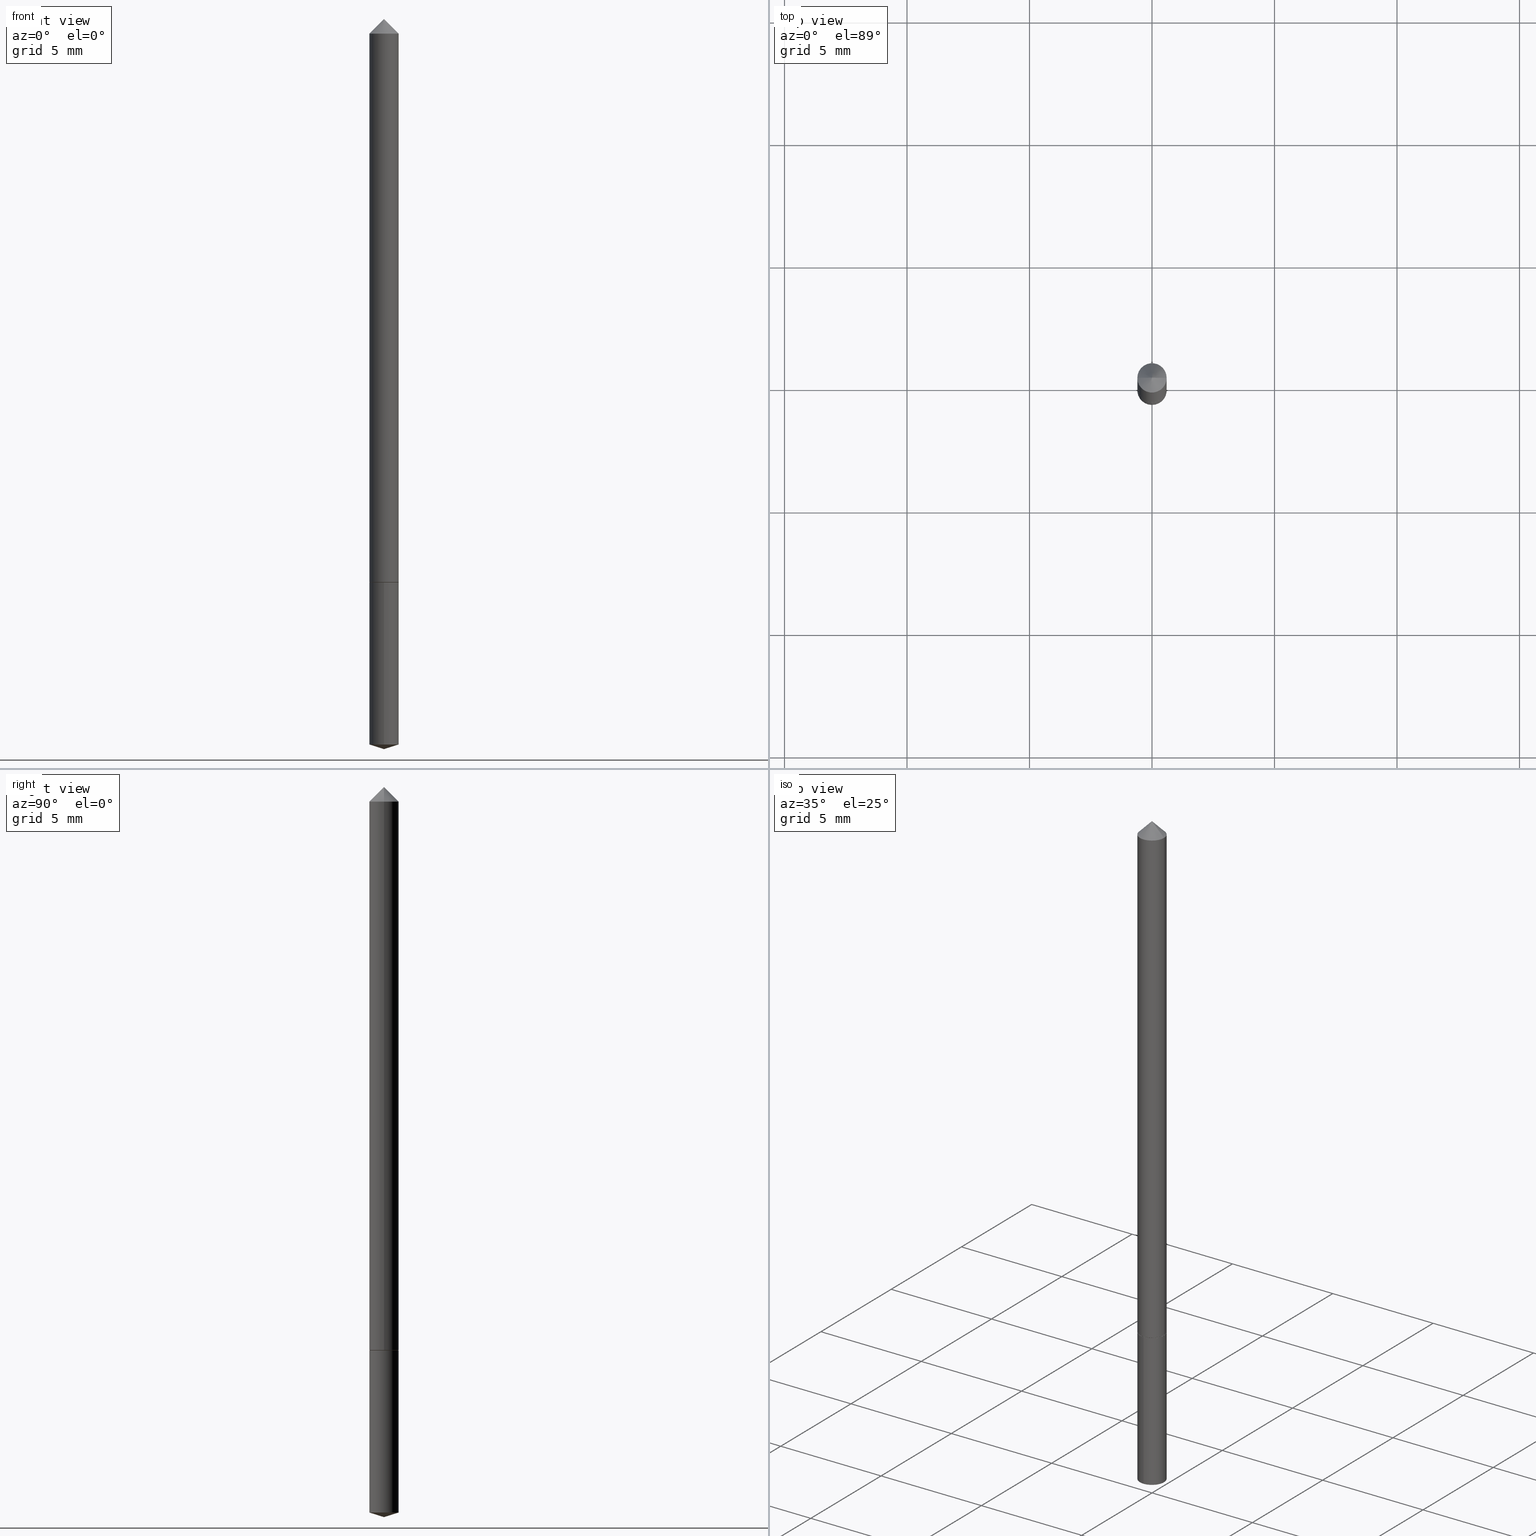
[diagram: canonical four-view strip — front | top / right | iso, engineering-drawing reading convention]
A machine part, canonical four-view strip (front | top / right | iso — engineering-drawing reading convention). The complete STEP part file that produces these views, byte-faithful:
ISO-10303-21;
HEADER;
FILE_DESCRIPTION (( 'STEP AP203' ),
    '1' );
FILE_NAME ('62029.STEP',
    '2024-04-23T04:55:15',
    ( '' ),
    ( '' ),
    'SwSTEP 2.0',
    'SolidWorks 2023',
    '' );
FILE_SCHEMA (( 'CONFIG_CONTROL_DESIGN' ));
ENDSEC;

DATA;
#1 = CC_DESIGN_DATE_AND_TIME_ASSIGNMENT ( #359, #280, ( #325 ) ) ;
#2 = MECHANICAL_CONTEXT ( 'NONE', #6, 'mechanical' ) ;
#3 = PLANE ( 'NONE',  #223 ) ;
#4 =( GEOMETRIC_REPRESENTATION_CONTEXT ( 3 ) GLOBAL_UNCERTAINTY_ASSIGNED_CONTEXT ( ( #201 ) ) GLOBAL_UNIT_ASSIGNED_CONTEXT ( ( #319, #290, #144 ) ) REPRESENTATION_CONTEXT ( 'NONE', 'WORKASPACE' ) );
#5 = LINE ( 'NONE', #231, #283 ) ;
#6 = APPLICATION_CONTEXT ( 'configuration controlled 3d designs of mechanical parts and assemblies' ) ;
#7 = CARTESIAN_POINT ( 'NONE',  ( 0.02360000000000010700, -3.351822085289419381E-15, -0.9127999999999999448 ) ) ;
#8 = DESIGN_CONTEXT ( 'detailed design', #62, 'design' ) ;
#9 = LOCAL_TIME ( 0, 55, 15.00000000000000000, #79 ) ;
#10 = DIRECTION ( 'NONE',  ( -6.982962677686265922E-15, -1.000000000000000000, 3.500519750498633829E-15 ) ) ;
#11 = DIRECTION ( 'NONE',  ( -6.982962677686265133E-15, -1.000000000000000000, 5.787813545898861862E-15 ) ) ;
#12 = ADVANCED_FACE ( 'NONE', ( #29 ), #336, .T. ) ;
#13 = CARTESIAN_POINT ( 'NONE',  ( 2.233446660688885291E-29, -3.188769906765445031E-15, -0.9133000000000001117 ) ) ;
#14 = DIRECTION ( 'NONE',  ( 1.000000000000000000, -6.982962677686265133E-15, 4.876176775795935793E-29 ) ) ;
#15 = ORIENTED_EDGE ( 'NONE', *, *, #232, .T. ) ;
#16 = DIRECTION ( 'NONE',  ( -2.445630756133418783E-29, 3.491249417299586917E-15, 1.000000000000000000 ) ) ;
#17 = EDGE_CURVE ( 'NONE', #294, #273, #33, .T. ) ;
#18 = ORIENTED_EDGE ( 'NONE', *, *, #194, .T. ) ;
#19 = CONICAL_SURFACE ( 'NONE', #203, 0.02360000000000000639, 0.7853981633974450594 ) ;
#20 = FACE_OUTER_BOUND ( 'NONE', #122, .T. ) ;
#21 = ORIENTED_EDGE ( 'NONE', *, *, #164, .F. ) ;
#22 = EDGE_LOOP ( 'NONE', ( #268, #73 ) ) ;
#23 = DIRECTION ( 'NONE',  ( 1.000000000000000000, 0.000000000000000000, 0.000000000000000000 ) ) ;
#24 = DIRECTION ( 'NONE',  ( -2.445630756133418783E-29, 3.491249417299586917E-15, 1.000000000000000000 ) ) ;
#25 = DATE_AND_TIME ( #333, #27 ) ;
#26 = VERTEX_POINT ( 'NONE', #136 ) ;
#27 = LOCAL_TIME ( 0, 55, 15.00000000000000000, #128 ) ;
#28 = DATE_AND_TIME ( #278, #9 ) ;
#29 = FACE_OUTER_BOUND ( 'NONE', #207, .T. ) ;
#30 = ADVANCED_FACE ( 'NONE', ( #252 ), #3, .F. ) ;
#31 = ADVANCED_BREP_SHAPE_REPRESENTATION ( '62029', ( #209, #88, #211 ), #4 ) ;
#32 = PERSON_AND_ORGANIZATION ( #309, #177 ) ;
#33 = LINE ( 'NONE', #310, #132 ) ;
#34 = DIRECTION ( 'NONE',  ( 1.000000000000000000, -6.982962677686267499E-15, 0.000000000000000000 ) ) ;
#35 = APPROVAL_PERSON_ORGANIZATION ( #160, #148, #153 ) ;
#36 = CARTESIAN_POINT ( 'NONE',  ( 7.642090019328602662E-31, -1.091087918388490267E-16, -0.03125000000000020817 ) ) ;
#37 = EDGE_CURVE ( 'NONE', #145, #349, #49, .T. ) ;
#38 = PLANE ( 'NONE',  #40 ) ;
#39 = CARTESIAN_POINT ( 'NONE',  ( 2.233446660688885291E-29, -3.188769906765445031E-15, -0.9133000000000001117 ) ) ;
#40 = AXIS2_PLACEMENT_3D ( 'NONE', #169, #143, #340 ) ;
#41 = DIRECTION ( 'NONE',  ( -1.000000000000000000, 6.982962677686265922E-15, 0.000000000000000000 ) ) ;
#42 = ORIENTED_EDGE ( 'NONE', *, *, #51, .T. ) ;
#43 = CIRCLE ( 'NONE', #247, 0.02360000000000000639 ) ;
#44 = CARTESIAN_POINT ( 'NONE',  ( 2.888534486069181142E-29, -4.123514686772542616E-15, -1.181100000000000039 ) ) ;
#45 = ORIENTED_EDGE ( 'NONE', *, *, #156, .T. ) ;
#46 = LENGTH_MEASURE_WITH_UNIT ( LENGTH_MEASURE( 0.02539999999999999897 ), #212 );
#47 = VERTEX_POINT ( 'NONE', #277 ) ;
#48 = LINE ( 'NONE', #126, #111 ) ;
#49 = CIRCLE ( 'NONE', #114, 0.02360000000000000639 ) ;
#50 = VECTOR ( 'NONE', #348, 39.37007874015748143 ) ;
#51 = EDGE_CURVE ( 'NONE', #176, #215, #360, .T. ) ;
#52 = PERSON_AND_ORGANIZATION_ROLE ( 'classification_officer' ) ;
#53 = DIRECTION ( 'NONE',  ( 1.000000000000000000, -6.982962677686267499E-15, 0.000000000000000000 ) ) ;
#54 = CARTESIAN_POINT ( 'NONE',  ( 0.000000000000000000, 0.000000000000000000, 0.000000000000000000 ) ) ;
#55 = DIRECTION ( 'NONE',  ( 1.000000000000000000, -6.982962677686267499E-15, 0.000000000000000000 ) ) ;
#56 = APPROVAL_STATUS ( 'not_yet_approved' ) ;
#57 = EDGE_CURVE ( 'NONE', #349, #145, #43, .T. ) ;
#58 = CC_DESIGN_APPROVAL ( #326, ( #346 ) ) ;
#59 = APPROVAL_STATUS ( 'not_yet_approved' ) ;
#60 = DIRECTION ( 'NONE',  ( -6.659769872151642344E-15, -0.9537169507482283759, 0.3007057995042682896 ) ) ;
#61 = DIRECTION ( 'NONE',  ( -2.445630756133418783E-29, 3.491249417299586917E-15, 1.000000000000000000 ) ) ;
#62 = APPLICATION_CONTEXT ( 'configuration controlled 3d designs of mechanical parts and assemblies' ) ;
#63 = DIRECTION ( 'NONE',  ( -2.445630756133418783E-29, 3.491249417299586917E-15, 1.000000000000000000 ) ) ;
#64 = EDGE_CURVE ( 'NONE', #176, #145, #80, .T. ) ;
#65 = DIRECTION ( 'NONE',  ( -0.7071067811865452413, 2.468850131082233000E-15, -0.7071067811865497932 ) ) ;
#66 = CARTESIAN_POINT ( 'NONE',  ( -0.02360000000000000639, 5.568912735454688829E-17, -0.03125000000000020817 ) ) ;
#67 = EDGE_LOOP ( 'NONE', ( #328, #165, #129 ) ) ;
#68 = CLOSED_SHELL ( 'NONE', ( #208, #261, #113, #30, #12, #305, #96 ) ) ;
#69 = ADVANCED_FACE ( 'NONE', ( #248 ), #291, .T. ) ;
#70 = CC_DESIGN_APPROVAL ( #121, ( #325 ) ) ;
#71 = CARTESIAN_POINT ( 'NONE',  ( 0.000000000000000000, 0.000000000000000000, 0.000000000000000000 ) ) ;
#72 = DIRECTION ( 'NONE',  ( -2.445630756133418783E-29, 3.491249417299586917E-15, 1.000000000000000000 ) ) ;
#73 = ORIENTED_EDGE ( 'NONE', *, *, #156, .F. ) ;
#74 = CIRCLE ( 'NONE', #110, 0.02310000000000015860 ) ;
#75 = CIRCLE ( 'NONE', #308, 0.02360000000000010700 ) ;
#76 = APPLICATION_PROTOCOL_DEFINITION ( 'international standard', 'config_control_design', 1994, #62 ) ;
#77 = CARTESIAN_POINT ( 'NONE',  ( 7.642090019328602662E-31, -1.091087918388490267E-16, -0.03125000000000020817 ) ) ;
#78 = APPROVAL_DATE_TIME ( #250, #148 ) ;
#79 = COORDINATED_UNIVERSAL_TIME_OFFSET ( 5, 0, .BEHIND. ) ;
#80 = LINE ( 'NONE', #155, #92 ) ;
#81 = DIMENSIONAL_EXPONENTS ( 1.000000000000000000, 0.000000000000000000, 0.000000000000000000, 0.000000000000000000, 0.000000000000000000, 0.000000000000000000, 0.000000000000000000 ) ;
#82 = SECURITY_CLASSIFICATION_LEVEL ( 'unclassified' ) ;
#83 = AXIS2_PLACEMENT_3D ( 'NONE', #39, #172, #289 ) ;
#84 = AXIS2_PLACEMENT_3D ( 'NONE', #117, #61, #139 ) ;
#85 = ORIENTED_EDGE ( 'NONE', *, *, #37, .T. ) ;
#86 = DIRECTION ( 'NONE',  ( 0.7071067811865452413, -7.319954787623248157E-15, -0.7071067811865497932 ) ) ;
#87 = CARTESIAN_POINT ( 'NONE',  ( -0.02310000000000015860, -3.021985307630750226E-15, -0.9133000000000003338 ) ) ;
#88 = MANIFOLD_SOLID_BREP ( 'Body-Move/Copy2[2]', #68 ) ;
#89 = EDGE_CURVE ( 'NONE', #235, #94, #184, .T. ) ;
#90 = DIRECTION ( 'NONE',  ( -1.000000000000000000, 6.982962677686265922E-15, 0.000000000000000000 ) ) ;
#91 = DIRECTION ( 'NONE',  ( 2.445468806185136597E-29, -3.491481338843145583E-15, -1.000000000000000000 ) ) ;
#92 = VECTOR ( 'NONE', #158, 39.37007874015748143 ) ;
#93 = CARTESIAN_POINT ( 'NONE',  ( 0.02310000000000015860, -3.350076344619999849E-15, -0.9133000000000003338 ) ) ;
#94 = VERTEX_POINT ( 'NONE', #87 ) ;
#95 = CARTESIAN_POINT ( 'NONE',  ( 1.852154347101886634E-31, -2.697661427278152003E-17, -0.007650000000000051724 ) ) ;
#96 = ADVANCED_FACE ( 'NONE', ( #140 ), #324, .T. ) ;
#97 = CYLINDRICAL_SURFACE ( 'NONE', #152, 0.02360000000000000292 ) ;
#98 = PRODUCT_DEFINITION_SHAPE ( 'NONE', 'NONE',  #346 ) ;
#99 = LOCAL_TIME ( 0, 55, 15.00000000000000000, #186 ) ;
#100 = EDGE_LOOP ( 'NONE', ( #174, #42, #347, #338 ) ) ;
#101 = EDGE_CURVE ( 'NONE', #273, #320, #341, .T. ) ;
#102 = DIRECTION ( 'NONE',  ( -6.982962677686265133E-15, -1.000000000000000000, 5.787813545898861862E-15 ) ) ;
#103 = ORIENTED_EDGE ( 'NONE', *, *, #194, .F. ) ;
#104 = EDGE_LOOP ( 'NONE', ( #266, #279 ) ) ;
#105 = APPROVAL_ROLE ( '' ) ;
#106 = DIRECTION ( 'NONE',  ( 1.000000000000000000, -6.982962677686272233E-15, 0.000000000000000000 ) ) ;
#107 = APPROVAL_ROLE ( '' ) ;
#108 = APPLICATION_PROTOCOL_DEFINITION ( 'international standard', 'config_control_design', 1994, #6 ) ;
#109 = CALENDAR_DATE ( 2024, 23, 4 ) ;
#110 = AXIS2_PLACEMENT_3D ( 'NONE', #202, #318, #198 ) ;
#111 = VECTOR ( 'NONE', #146, 39.37007874015748143 ) ;
#112 = CARTESIAN_POINT ( 'NONE',  ( 7.642090019328602662E-31, -1.091087918388490267E-16, -0.03125000000000020817 ) ) ;
#113 = ADVANCED_FACE ( 'NONE', ( #199 ), #159, .T. ) ;
#114 = AXIS2_PLACEMENT_3D ( 'NONE', #112, #282, #34 ) ;
#115 = VECTOR ( 'NONE', #204, 39.37007874015748143 ) ;
#116 = CARTESIAN_POINT ( 'NONE',  ( 2.232223926285792489E-29, -3.187024166096022738E-15, -0.9127999999999999448 ) ) ;
#117 = CARTESIAN_POINT ( 'NONE',  ( 2.870188512976699253E-29, -4.097747934292677684E-15, -1.173658948582456230 ) ) ;
#118 = DIRECTION ( 'NONE',  ( -6.982962677686265133E-15, -1.000000000000000000, 5.787813545898861862E-15 ) ) ;
#119 = CARTESIAN_POINT ( 'NONE',  ( -1.647979191933735680E-16, -0.02360000000000319134, -0.9132999999999998897 ) ) ;
#120 = EDGE_LOOP ( 'NONE', ( #355, #237, #163 ) ) ;
#121 = APPROVAL ( #135, 'UNSPECIFIED' ) ;
#122 = EDGE_LOOP ( 'NONE', ( #18, #187, #334, #147 ) ) ;
#123 = LINE ( 'NONE', #262, #142 ) ;
#124 = ORIENTED_EDGE ( 'NONE', *, *, #311, .T. ) ;
#125 = AXIS2_PLACEMENT_3D ( 'NONE', #161, #24, #131 ) ;
#126 = CARTESIAN_POINT ( 'NONE',  ( 2.888537080041887997E-29, -4.123514686772541827E-15, -1.181100000000000039 ) ) ;
#127 = ORIENTED_EDGE ( 'NONE', *, *, #265, .T. ) ;
#128 = COORDINATED_UNIVERSAL_TIME_OFFSET ( 5, 0, .BEHIND. ) ;
#129 = ORIENTED_EDGE ( 'NONE', *, *, #101, .F. ) ;
#130 = CALENDAR_DATE ( 2024, 23, 4 ) ;
#131 = DIRECTION ( 'NONE',  ( -6.982962677686265922E-15, -1.000000000000000000, 3.500519750498633829E-15 ) ) ;
#132 = VECTOR ( 'NONE', #60, 39.37007874015748854 ) ;
#133 = PERSON_AND_ORGANIZATION ( #309, #177 ) ;
#134 = PERSON_AND_ORGANIZATION_ROLE ( 'creator' ) ;
#135 = APPROVAL_STATUS ( 'not_yet_approved' ) ;
#136 = CARTESIAN_POINT ( 'NONE',  ( 1.676880856394123348E-16, 0.02359999999999681450, -0.9133000000000002228 ) ) ;
#137 = ADVANCED_FACE ( 'NONE', ( #313 ), #38, .F. ) ;
#138 = PRODUCT_DEFINITION_FORMATION_WITH_SPECIFIED_SOURCE ( 'ANY', '', #243, .NOT_KNOWN. ) ;
#139 = DIRECTION ( 'NONE',  ( -6.982962677686265133E-15, -1.000000000000000000, 5.787813545898861862E-15 ) ) ;
#140 = FACE_OUTER_BOUND ( 'NONE', #180, .T. ) ;
#141 = AXIS2_PLACEMENT_3D ( 'NONE', #312, #288, #284 ) ;
#142 = VECTOR ( 'NONE', #72, 39.37007874015748143 ) ;
#143 = DIRECTION ( 'NONE',  ( 2.445630756133418503E-29, -3.491249417299586917E-15, -1.000000000000000000 ) ) ;
#144 =( NAMED_UNIT ( * ) SI_UNIT ( $, .STERADIAN. ) SOLID_ANGLE_UNIT ( ) );
#145 = VERTEX_POINT ( 'NONE', #315 ) ;
#146 = DIRECTION ( 'NONE',  ( 6.776566513254269181E-15, 0.9537169507482304853, 0.3007057995042616838 ) ) ;
#147 = ORIENTED_EDGE ( 'NONE', *, *, #249, .F. ) ;
#148 = APPROVAL ( #59, 'UNSPECIFIED' ) ;
#149 = EDGE_LOOP ( 'NONE', ( #195, #15, #21, #205 ) ) ;
#150 = DIRECTION ( 'NONE',  ( -2.445468806185136597E-29, 3.491481338843145583E-15, 1.000000000000000000 ) ) ;
#151 = ORIENTED_EDGE ( 'NONE', *, *, #17, .T. ) ;
#152 = AXIS2_PLACEMENT_3D ( 'NONE', #13, #345, #102 ) ;
#153 = APPROVAL_ROLE ( '' ) ;
#154 = PERSON_AND_ORGANIZATION_ROLE ( 'design_owner' ) ;
#155 = CARTESIAN_POINT ( 'NONE',  ( -0.02360000000000005843, 1.676880856393840590E-16, -1.160868681300160606E-30 ) ) ;
#156 = EDGE_CURVE ( 'NONE', #94, #235, #74, .T. ) ;
#157 = COORDINATED_UNIVERSAL_TIME_OFFSET ( 5, 0, .BEHIND. ) ;
#158 = DIRECTION ( 'NONE',  ( -2.445468806185136877E-29, 3.491481338843145188E-15, 1.000000000000000000 ) ) ;
#159 = CONICAL_SURFACE ( 'NONE', #299, 0.02360000000000010700, 0.7853981633969532306 ) ;
#160 = PERSON_AND_ORGANIZATION ( #309, #177 ) ;
#161 = CARTESIAN_POINT ( 'NONE',  ( -9.339628886114216244E-28, 1.333270379598953859E-13, 38.18897874015748073 ) ) ;
#162 = CALENDAR_DATE ( 2024, 23, 4 ) ;
#163 = ORIENTED_EDGE ( 'NONE', *, *, #57, .T. ) ;
#164 = EDGE_CURVE ( 'NONE', #47, #26, #323, .T. ) ;
#165 = ORIENTED_EDGE ( 'NONE', *, *, #256, .T. ) ;
#166 = DIRECTION ( 'NONE',  ( 1.000000000000000000, -6.982962677686267499E-15, 0.000000000000000000 ) ) ;
#167 = CARTESIAN_POINT ( 'NONE',  ( -0.02360000000000010700, -3.019336080456638236E-15, -0.9127999999999999448 ) ) ;
#168 = CC_DESIGN_PERSON_AND_ORGANIZATION_ASSIGNMENT ( #363, #154, ( #243 ) ) ;
#169 = CARTESIAN_POINT ( 'NONE',  ( 2.233446660688885291E-29, -3.188769906765445031E-15, -0.9133000000000001117 ) ) ;
#170 = CLOSED_SHELL ( 'NONE', ( #298, #69, #173, #332, #137 ) ) ;
#171 = LOCAL_TIME ( 0, 55, 15.00000000000000000, #217 ) ;
#172 = DIRECTION ( 'NONE',  ( -2.445630756133418783E-29, 3.491249417299586917E-15, 1.000000000000000000 ) ) ;
#173 = ADVANCED_FACE ( 'NONE', ( #257 ), #286, .T. ) ;
#174 = ORIENTED_EDGE ( 'NONE', *, *, #64, .F. ) ;
#175 = CYLINDRICAL_SURFACE ( 'NONE', #287, 0.02360000000000005843 ) ;
#176 = VERTEX_POINT ( 'NONE', #167 ) ;
#177 = ORGANIZATION ( 'UNSPECIFIED', 'UNSPECIFIED', '' ) ;
#178 = CC_DESIGN_PERSON_AND_ORGANIZATION_ASSIGNMENT ( #301, #221, ( #138 ) ) ;
#179 = CARTESIAN_POINT ( 'NONE',  ( 0.02360000000000010700, -3.351822085289419381E-15, -0.9127999999999999448 ) ) ;
#180 = EDGE_LOOP ( 'NONE', ( #218, #213, #85 ) ) ;
#181 = CARTESIAN_POINT ( 'NONE',  ( 0.02360000000000005843, -1.647979191933962724E-16, 1.150777719087843758E-30 ) ) ;
#182 = CARTESIAN_POINT ( 'NONE',  ( 0.000000000000000000, 0.000000000000000000, 0.000000000000000000 ) ) ;
#183 = EDGE_LOOP ( 'NONE', ( #357, #151, #351 ) ) ;
#184 = CIRCLE ( 'NONE', #253, 0.02310000000000015860 ) ;
#185 = AXIS2_PLACEMENT_3D ( 'NONE', #182, #354, #292 ) ;
#186 = COORDINATED_UNIVERSAL_TIME_OFFSET ( 5, 0, .BEHIND. ) ;
#187 = ORIENTED_EDGE ( 'NONE', *, *, #64, .T. ) ;
#188 = EDGE_CURVE ( 'NONE', #251, #349, #5, .T. ) ;
#189 = DATE_AND_TIME ( #109, #171 ) ;
#190 = DATE_TIME_ROLE ( 'creation_date' ) ;
#191 = AXIS2_PLACEMENT_3D ( 'NONE', #226, #244, #281 ) ;
#192 = CC_DESIGN_SECURITY_CLASSIFICATION ( #325, ( #138 ) ) ;
#193 = PERSON_AND_ORGANIZATION ( #309, #177 ) ;
#194 = EDGE_CURVE ( 'NONE', #215, #176, #75, .T. ) ;
#195 = ORIENTED_EDGE ( 'NONE', *, *, #101, .T. ) ;
#196 = DIRECTION ( 'NONE',  ( -2.445468806185136597E-29, 3.491481338843145583E-15, 1.000000000000000000 ) ) ;
#197 = AXIS2_PLACEMENT_3D ( 'NONE', #219, #358, #55 ) ;
#198 = DIRECTION ( 'NONE',  ( 1.000000000000000000, -6.982962677686272233E-15, 0.000000000000000000 ) ) ;
#199 = FACE_OUTER_BOUND ( 'NONE', #304, .T. ) ;
#200 = CARTESIAN_POINT ( 'NONE',  ( 2.233446660688885291E-29, -3.188769906765445031E-15, -0.9133000000000001117 ) ) ;
#201 = UNCERTAINTY_MEASURE_WITH_UNIT (LENGTH_MEASURE( 1.000000000000000082E-05 ), #319, 'distance_accuracy_value', 'NONE');
#202 = CARTESIAN_POINT ( 'NONE',  ( 2.233446660688885851E-29, -3.188769906765445820E-15, -0.9133000000000003338 ) ) ;
#203 = AXIS2_PLACEMENT_3D ( 'NONE', #36, #343, #90 ) ;
#204 = DIRECTION ( 'NONE',  ( -0.7071067811861974084, 7.493145998869088827E-15, 0.7071067811868976261 ) ) ;
#205 = ORIENTED_EDGE ( 'NONE', *, *, #265, .F. ) ;
#206 = CARTESIAN_POINT ( 'NONE',  ( -1.647979191933671339E-16, -0.02360000000000408993, -1.173658948582456008 ) ) ;
#207 = EDGE_LOOP ( 'NONE', ( #242, #45, #322, #271 ) ) ;
#208 = ADVANCED_FACE ( 'NONE', ( #339 ), #19, .T. ) ;
#209 = MANIFOLD_SOLID_BREP ( 'Body-Move/Copy2[1]', #170 ) ;
#210 = LINE ( 'NONE', #66, #254 ) ;
#211 = AXIS2_PLACEMENT_3D ( 'NONE', #54, #306, #23 ) ;
#212 =( LENGTH_UNIT ( ) NAMED_UNIT ( * ) SI_UNIT ( $, .METRE. ) );
#213 = ORIENTED_EDGE ( 'NONE', *, *, #361, .T. ) ;
#214 = CARTESIAN_POINT ( 'NONE',  ( 1.676880856394122855E-16, 0.02359999999999589509, -1.173658948582456452 ) ) ;
#215 = VERTEX_POINT ( 'NONE', #7 ) ;
#216 = ORIENTED_EDGE ( 'NONE', *, *, #220, .F. ) ;
#217 = COORDINATED_UNIVERSAL_TIME_OFFSET ( 5, 0, .BEHIND. ) ;
#218 = ORIENTED_EDGE ( 'NONE', *, *, #188, .F. ) ;
#219 = CARTESIAN_POINT ( 'NONE',  ( 2.232223926285792489E-29, -3.187024166096022738E-15, -0.9127999999999999448 ) ) ;
#220 = EDGE_CURVE ( 'NONE', #26, #47, #293, .T. ) ;
#221 = PERSON_AND_ORGANIZATION_ROLE ( 'design_supplier' ) ;
#222 = ORIENTED_EDGE ( 'NONE', *, *, #272, .F. ) ;
#223 = AXIS2_PLACEMENT_3D ( 'NONE', #331, #307, #275 ) ;
#224 = AXIS2_PLACEMENT_3D ( 'NONE', #200, #316, #11 ) ;
#225 = SHAPE_DEFINITION_REPRESENTATION ( #98, #31 ) ;
#226 = CARTESIAN_POINT ( 'NONE',  ( 2.232223926285792489E-29, -3.187024166096022738E-15, -0.9127999999999999448 ) ) ;
#227 = CARTESIAN_POINT ( 'NONE',  ( 2.232223926285792489E-29, -3.187024166096022738E-15, -0.9127999999999999448 ) ) ;
#228 = DIRECTION ( 'NONE',  ( -2.445468806185136597E-29, 3.491481338843145583E-15, 1.000000000000000000 ) ) ;
#229 = EDGE_CURVE ( 'NONE', #320, #273, #240, .T. ) ;
#230 = CC_DESIGN_APPROVAL ( #148, ( #138 ) ) ;
#231 = CARTESIAN_POINT ( 'NONE',  ( 0.02360000000000000639, -2.710165445862572413E-16, -0.03125000000000020817 ) ) ;
#232 = EDGE_CURVE ( 'NONE', #320, #26, #123, .T. ) ;
#233 = APPROVAL_PERSON_ORGANIZATION ( #32, #121, #105 ) ;
#234 = LINE ( 'NONE', #179, #337 ) ;
#235 = VERTEX_POINT ( 'NONE', #93 ) ;
#236 = CYLINDRICAL_SURFACE ( 'NONE', #344, 0.02360000000000000292 ) ;
#237 = ORIENTED_EDGE ( 'NONE', *, *, #188, .T. ) ;
#238 = CYLINDRICAL_SURFACE ( 'NONE', #185, 0.02360000000000005843 ) ;
#239 = EDGE_LOOP ( 'NONE', ( #296, #300, #127, #216 ) ) ;
#240 = CIRCLE ( 'NONE', #84, 0.02360000000000000292 ) ;
#241 = CARTESIAN_POINT ( 'NONE',  ( -0.02360000000000010700, -3.019336080456638236E-15, -0.9127999999999999448 ) ) ;
#242 = ORIENTED_EDGE ( 'NONE', *, *, #311, .F. ) ;
#243 = PRODUCT ( '62029', '62029', '', ( #2 ) ) ;
#244 = DIRECTION ( 'NONE',  ( -2.445468806185136597E-29, 3.491481338843145583E-15, 1.000000000000000000 ) ) ;
#245 = PERSON_AND_ORGANIZATION_ROLE ( 'creator' ) ;
#246 = CARTESIAN_POINT ( 'NONE',  ( 2.233446660688885851E-29, -3.188769906765445820E-15, -0.9133000000000003338 ) ) ;
#247 = AXIS2_PLACEMENT_3D ( 'NONE', #77, #302, #53 ) ;
#248 = FACE_OUTER_BOUND ( 'NONE', #67, .T. ) ;
#249 = EDGE_CURVE ( 'NONE', #215, #349, #297, .T. ) ;
#250 = DATE_AND_TIME ( #162, #99 ) ;
#251 = VERTEX_POINT ( 'NONE', #95 ) ;
#252 = FACE_OUTER_BOUND ( 'NONE', #22, .T. ) ;
#253 = AXIS2_PLACEMENT_3D ( 'NONE', #246, #362, #106 ) ;
#254 = VECTOR ( 'NONE', #65, 39.37007874015748143 ) ;
#255 = CARTESIAN_POINT ( 'NONE',  ( 7.642090019328602662E-31, -1.091087918388490267E-16, -0.03125000000000020817 ) ) ;
#256 = EDGE_CURVE ( 'NONE', #294, #320, #48, .T. ) ;
#257 = FACE_OUTER_BOUND ( 'NONE', #183, .T. ) ;
#258 = DIRECTION ( 'NONE',  ( 1.000000000000000000, -6.982962677686267499E-15, 0.000000000000000000 ) ) ;
#259 = APPROVAL_PERSON_ORGANIZATION ( #133, #326, #107 ) ;
#260 = CARTESIAN_POINT ( 'NONE',  ( -9.339628886114216244E-28, 1.333270379598953859E-13, 38.18897874015748073 ) ) ;
#261 = ADVANCED_FACE ( 'NONE', ( #20 ), #175, .T. ) ;
#262 = CARTESIAN_POINT ( 'NONE',  ( 1.676880856394059499E-16, 0.02359999999999681450, -0.9133000000000002228 ) ) ;
#263 = DIRECTION ( 'NONE',  ( -2.445630756133418783E-29, 3.491249417299586917E-15, 1.000000000000000000 ) ) ;
#264 = DIRECTION ( 'NONE',  ( 0.7071067811861974084, -2.468850131078589646E-15, 0.7071067811868976261 ) ) ;
#265 = EDGE_CURVE ( 'NONE', #273, #47, #327, .T. ) ;
#266 = ORIENTED_EDGE ( 'NONE', *, *, #164, .T. ) ;
#267 = PRODUCT_RELATED_PRODUCT_CATEGORY ( 'detail', '', ( #243 ) ) ;
#268 = ORIENTED_EDGE ( 'NONE', *, *, #89, .F. ) ;
#269 = FACE_OUTER_BOUND ( 'NONE', #100, .T. ) ;
#270 = AXIS2_PLACEMENT_3D ( 'NONE', #255, #91, #41 ) ;
#271 = ORIENTED_EDGE ( 'NONE', *, *, #51, .F. ) ;
#272 = EDGE_CURVE ( 'NONE', #235, #215, #234, .T. ) ;
#273 = VERTEX_POINT ( 'NONE', #206 ) ;
#274 = APPROVAL_DATE_TIME ( #28, #326 ) ;
#275 = DIRECTION ( 'NONE',  ( 1.000000000000000000, -6.982962677686265922E-15, 4.876176775795935793E-29 ) ) ;
#276 = CC_DESIGN_PERSON_AND_ORGANIZATION_ASSIGNMENT ( #364, #245, ( #138 ) ) ;
#277 = CARTESIAN_POINT ( 'NONE',  ( -1.647979191933735680E-16, -0.02360000000000319134, -0.9132999999999998897 ) ) ;
#278 = CALENDAR_DATE ( 2024, 23, 4 ) ;
#279 = ORIENTED_EDGE ( 'NONE', *, *, #220, .T. ) ;
#280 = DATE_TIME_ROLE ( 'classification_date' ) ;
#281 = DIRECTION ( 'NONE',  ( 1.000000000000000000, -6.982962677686267499E-15, 0.000000000000000000 ) ) ;
#282 = DIRECTION ( 'NONE',  ( -2.445468806185136597E-29, 3.491481338843145583E-15, 1.000000000000000000 ) ) ;
#283 = VECTOR ( 'NONE', #86, 39.37007874015748143 ) ;
#284 = DIRECTION ( 'NONE',  ( -6.982962677686265133E-15, -1.000000000000000000, 5.787813545898861862E-15 ) ) ;
#285 = CC_DESIGN_PERSON_AND_ORGANIZATION_ASSIGNMENT ( #330, #134, ( #346 ) ) ;
#286 = CONICAL_SURFACE ( 'NONE', #317, 124.8659371009175914, 1.265363707695897455 ) ;
#287 = AXIS2_PLACEMENT_3D ( 'NONE', #71, #150, #14 ) ;
#288 = DIRECTION ( 'NONE',  ( -2.445630756133418783E-29, 3.491249417299586917E-15, 1.000000000000000000 ) ) ;
#289 = DIRECTION ( 'NONE',  ( -6.982962677686265133E-15, -1.000000000000000000, 5.787813545898861862E-15 ) ) ;
#290 =( NAMED_UNIT ( * ) PLANE_ANGLE_UNIT ( ) SI_UNIT ( $, .RADIAN. ) );
#291 = CONICAL_SURFACE ( 'NONE', #125, 124.8659371009175914, 1.265363707695897455 ) ;
#292 = DIRECTION ( 'NONE',  ( 1.000000000000000000, -6.982962677686265133E-15, 4.876176775795935793E-29 ) ) ;
#293 = CIRCLE ( 'NONE', #224, 0.02360000000000000292 ) ;
#294 = VERTEX_POINT ( 'NONE', #44 ) ;
#295 = FACE_OUTER_BOUND ( 'NONE', #149, .T. ) ;
#296 = ORIENTED_EDGE ( 'NONE', *, *, #232, .F. ) ;
#297 = LINE ( 'NONE', #181, #50 ) ;
#298 = ADVANCED_FACE ( 'NONE', ( #295 ), #236, .T. ) ;
#299 = AXIS2_PLACEMENT_3D ( 'NONE', #227, #228, #166 ) ;
#300 = ORIENTED_EDGE ( 'NONE', *, *, #229, .T. ) ;
#301 = PERSON_AND_ORGANIZATION ( #309, #177 ) ;
#302 = DIRECTION ( 'NONE',  ( -2.445468806185136597E-29, 3.491481338843145583E-15, 1.000000000000000000 ) ) ;
#303 = APPROVAL_DATE_TIME ( #189, #121 ) ;
#304 = EDGE_LOOP ( 'NONE', ( #335, #124, #103, #222 ) ) ;
#305 = ADVANCED_FACE ( 'NONE', ( #269 ), #238, .T. ) ;
#306 = DIRECTION ( 'NONE',  ( 0.000000000000000000, 0.000000000000000000, 1.000000000000000000 ) ) ;
#307 = DIRECTION ( 'NONE',  ( -2.438088387897960049E-29, 3.491481338843145188E-15, 1.000000000000000000 ) ) ;
#308 = AXIS2_PLACEMENT_3D ( 'NONE', #116, #196, #258 ) ;
#309 = PERSON ( 'UNSPECIFIED', 'UNSPECIFIED', 'UNSPECIFIED', ('UNSPECIFIED'), ('UNSPECIFIED'), ('UNSPECIFIED') ) ;
#310 = CARTESIAN_POINT ( 'NONE',  ( 2.888238668293649042E-29, -4.123938314664006806E-15, -1.181100000000000039 ) ) ;
#311 = EDGE_CURVE ( 'NONE', #94, #176, #321, .T. ) ;
#312 = CARTESIAN_POINT ( 'NONE',  ( 2.870188512976699253E-29, -4.097747934292677684E-15, -1.173658948582456230 ) ) ;
#313 = FACE_OUTER_BOUND ( 'NONE', #104, .T. ) ;
#314 = CC_DESIGN_DATE_AND_TIME_ASSIGNMENT ( #25, #190, ( #346 ) ) ;
#315 = CARTESIAN_POINT ( 'NONE',  ( -0.02360000000000000639, -1.480378393328050233E-15, -0.03125000000000020817 ) ) ;
#316 = DIRECTION ( 'NONE',  ( -2.445630756133418783E-29, 3.491249417299586917E-15, 1.000000000000000000 ) ) ;
#317 = AXIS2_PLACEMENT_3D ( 'NONE', #260, #63, #10 ) ;
#318 = DIRECTION ( 'NONE',  ( -2.445468806185136597E-29, 3.491481338843145583E-15, 1.000000000000000000 ) ) ;
#319 =( CONVERSION_BASED_UNIT ( 'INCH', #46 ) LENGTH_UNIT ( ) NAMED_UNIT ( #81 ) );
#320 = VERTEX_POINT ( 'NONE', #214 ) ;
#321 = LINE ( 'NONE', #241, #115 ) ;
#322 = ORIENTED_EDGE ( 'NONE', *, *, #272, .T. ) ;
#323 = CIRCLE ( 'NONE', #83, 0.02360000000000000292 ) ;
#324 = CONICAL_SURFACE ( 'NONE', #270, 0.02360000000000000639, 0.7853981633974450594 ) ;
#325 = SECURITY_CLASSIFICATION ( '', '', #82 ) ;
#326 = APPROVAL ( #56, 'UNSPECIFIED' ) ;
#327 = LINE ( 'NONE', #119, #342 ) ;
#328 = ORIENTED_EDGE ( 'NONE', *, *, #17, .F. ) ;
#329 = CARTESIAN_POINT ( 'NONE',  ( 0.02360000000000000639, -2.739067110322449540E-16, -0.03125000000000020817 ) ) ;
#330 = PERSON_AND_ORGANIZATION ( #309, #177 ) ;
#331 = CARTESIAN_POINT ( 'NONE',  ( -1.537650599940588844E-29, -8.589195821513409908E-15, -0.9133000000000002228 ) ) ;
#332 = ADVANCED_FACE ( 'NONE', ( #356 ), #97, .T. ) ;
#333 = CALENDAR_DATE ( 2024, 23, 4 ) ;
#334 = ORIENTED_EDGE ( 'NONE', *, *, #57, .F. ) ;
#335 = ORIENTED_EDGE ( 'NONE', *, *, #89, .T. ) ;
#336 = CONICAL_SURFACE ( 'NONE', #191, 0.02360000000000010700, 0.7853981633969532306 ) ;
#337 = VECTOR ( 'NONE', #264, 39.37007874015748143 ) ;
#338 = ORIENTED_EDGE ( 'NONE', *, *, #37, .F. ) ;
#339 = FACE_OUTER_BOUND ( 'NONE', #120, .T. ) ;
#340 = DIRECTION ( 'NONE',  ( 6.982962677686265922E-15, 1.000000000000000000, -3.491249417299586917E-15 ) ) ;
#341 = CIRCLE ( 'NONE', #141, 0.02360000000000000292 ) ;
#342 = VECTOR ( 'NONE', #263, 39.37007874015748143 ) ;
#343 = DIRECTION ( 'NONE',  ( 2.445468806185136597E-29, -3.491481338843145583E-15, -1.000000000000000000 ) ) ;
#344 = AXIS2_PLACEMENT_3D ( 'NONE', #350, #16, #118 ) ;
#345 = DIRECTION ( 'NONE',  ( -2.445630756133418783E-29, 3.491249417299586917E-15, 1.000000000000000000 ) ) ;
#346 = PRODUCT_DEFINITION ( 'UNKNOWN', '', #138, #8 ) ;
#347 = ORIENTED_EDGE ( 'NONE', *, *, #249, .T. ) ;
#348 = DIRECTION ( 'NONE',  ( -2.445468806185136877E-29, 3.491481338843145188E-15, 1.000000000000000000 ) ) ;
#349 = VERTEX_POINT ( 'NONE', #329 ) ;
#350 = CARTESIAN_POINT ( 'NONE',  ( 2.233446660688885291E-29, -3.188769906765445031E-15, -0.9133000000000001117 ) ) ;
#351 = ORIENTED_EDGE ( 'NONE', *, *, #229, .F. ) ;
#352 = CC_DESIGN_PERSON_AND_ORGANIZATION_ASSIGNMENT ( #193, #52, ( #325 ) ) ;
#353 = LOCAL_TIME ( 0, 55, 15.00000000000000000, #157 ) ;
#354 = DIRECTION ( 'NONE',  ( -2.445468806185136597E-29, 3.491481338843145583E-15, 1.000000000000000000 ) ) ;
#355 = ORIENTED_EDGE ( 'NONE', *, *, #361, .F. ) ;
#356 = FACE_OUTER_BOUND ( 'NONE', #239, .T. ) ;
#357 = ORIENTED_EDGE ( 'NONE', *, *, #256, .F. ) ;
#358 = DIRECTION ( 'NONE',  ( -2.445468806185136597E-29, 3.491481338843145583E-15, 1.000000000000000000 ) ) ;
#359 = DATE_AND_TIME ( #130, #353 ) ;
#360 = CIRCLE ( 'NONE', #197, 0.02360000000000010700 ) ;
#361 = EDGE_CURVE ( 'NONE', #251, #145, #210, .T. ) ;
#362 = DIRECTION ( 'NONE',  ( -2.445468806185136597E-29, 3.491481338843145583E-15, 1.000000000000000000 ) ) ;
#363 = PERSON_AND_ORGANIZATION ( #309, #177 ) ;
#364 = PERSON_AND_ORGANIZATION ( #309, #177 ) ;
ENDSEC;
END-ISO-10303-21;
